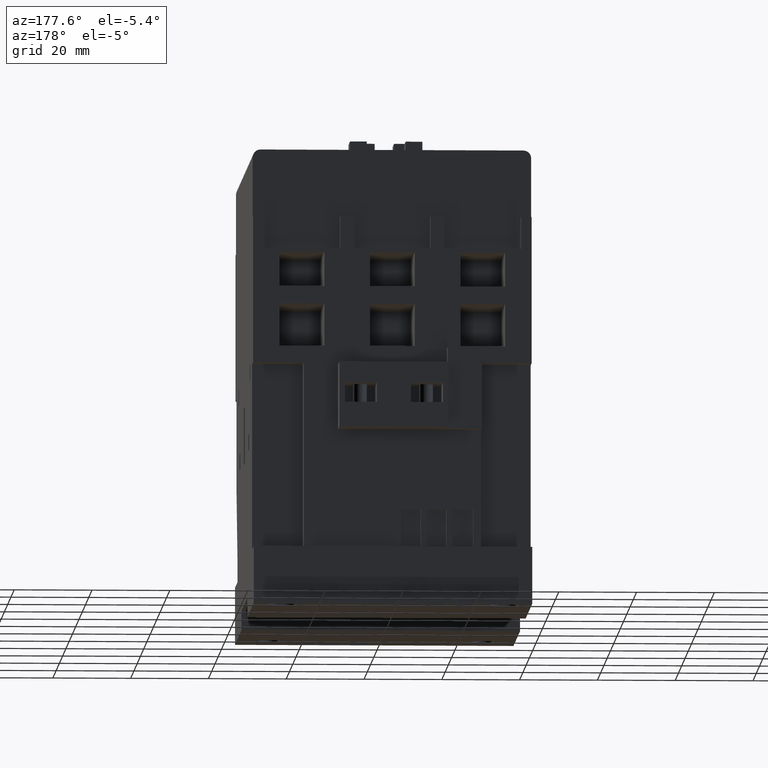
[diagram: clean part render]
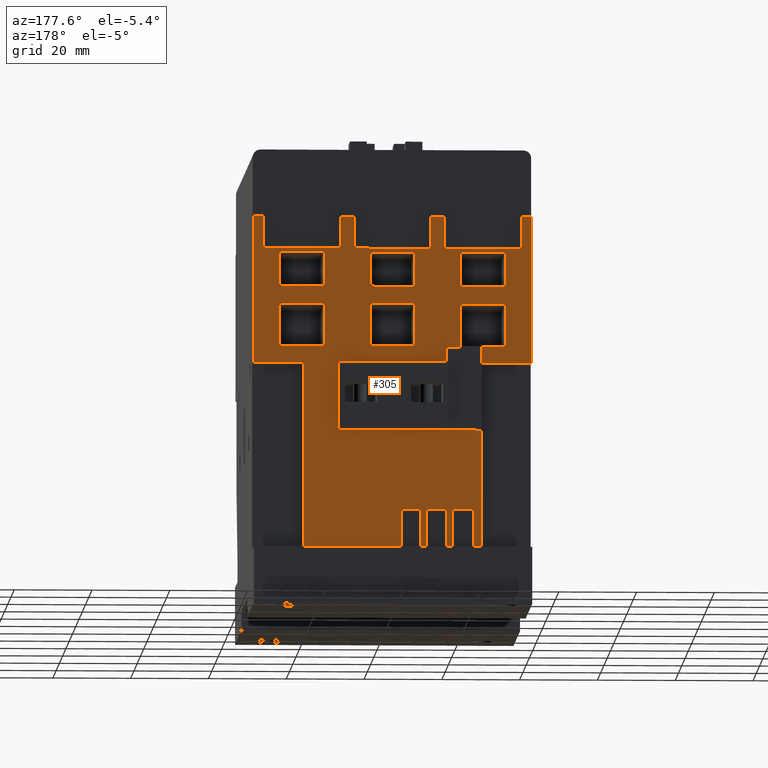
[diagram: same view with one face highlighted and labeled with its STEP entity id]
A machine part, auxiliary view. The second image highlights one B-rep face of the part: STEP entity #305.
In plain terms, the highlighted planar face has unit normal (-0, 1, -0).
Its self-contained STEP definition (entity closure, byte-faithful):
#226=FACE_BOUND('',#1390,.T.);
#227=FACE_BOUND('',#1391,.T.);
#228=FACE_BOUND('',#1392,.T.);
#229=FACE_BOUND('',#1393,.T.);
#230=FACE_BOUND('',#1394,.T.);
#231=FACE_BOUND('',#1395,.T.);
#232=FACE_BOUND('',#1396,.T.);
#305=ADVANCED_FACE('',(#226,#227,#228,#229,#230,#231,#232),#672,.T.);
#672=PLANE('',#7162);
#1390=EDGE_LOOP('',(#2113,#2114,#2115,#2116,#2117,#2118,#2119,#2120,#2121,
#2122,#2123,#2124,#2125,#2126,#2127,#2128,#2129,#2130,#2131,#2132,#2133,
#2134,#2135,#2136,#2137,#2138,#2139,#2140,#2141,#2142,#2143,#2144,#2145,
#2146,#2147,#2148,#2149,#2150));
#1391=EDGE_LOOP('',(#2151,#2152,#2153,#2154));
#1392=EDGE_LOOP('',(#2155,#2156,#2157,#2158));
#1393=EDGE_LOOP('',(#2159,#2160,#2161,#2162));
#1394=EDGE_LOOP('',(#2163,#2164,#2165,#2166));
#1395=EDGE_LOOP('',(#2167,#2168,#2169,#2170));
#1396=EDGE_LOOP('',(#2171,#2172,#2173,#2174));
#2113=ORIENTED_EDGE('',*,*,#4663,.F.);
#2114=ORIENTED_EDGE('',*,*,#4664,.F.);
#2115=ORIENTED_EDGE('',*,*,#4665,.F.);
#2116=ORIENTED_EDGE('',*,*,#4666,.F.);
#2117=ORIENTED_EDGE('',*,*,#4667,.F.);
#2118=ORIENTED_EDGE('',*,*,#4668,.F.);
#2119=ORIENTED_EDGE('',*,*,#4669,.F.);
#2120=ORIENTED_EDGE('',*,*,#4670,.F.);
#2121=ORIENTED_EDGE('',*,*,#4443,.T.);
#2122=ORIENTED_EDGE('',*,*,#4671,.F.);
#2123=ORIENTED_EDGE('',*,*,#4672,.F.);
#2124=ORIENTED_EDGE('',*,*,#4673,.F.);
#2125=ORIENTED_EDGE('',*,*,#4674,.F.);
#2126=ORIENTED_EDGE('',*,*,#4675,.F.);
#2127=ORIENTED_EDGE('',*,*,#4676,.F.);
#2128=ORIENTED_EDGE('',*,*,#4677,.F.);
#2129=ORIENTED_EDGE('',*,*,#4678,.F.);
#2130=ORIENTED_EDGE('',*,*,#4679,.F.);
#2131=ORIENTED_EDGE('',*,*,#4680,.F.);
#2132=ORIENTED_EDGE('',*,*,#4681,.F.);
#2133=ORIENTED_EDGE('',*,*,#4682,.F.);
#2134=ORIENTED_EDGE('',*,*,#4683,.F.);
#2135=ORIENTED_EDGE('',*,*,#4489,.F.);
#2136=ORIENTED_EDGE('',*,*,#4684,.T.);
#2137=ORIENTED_EDGE('',*,*,#4685,.T.);
#2138=ORIENTED_EDGE('',*,*,#4525,.T.);
#2139=ORIENTED_EDGE('',*,*,#4686,.F.);
#2140=ORIENTED_EDGE('',*,*,#4687,.F.);
#2141=ORIENTED_EDGE('',*,*,#4688,.T.);
#2142=ORIENTED_EDGE('',*,*,#4521,.T.);
#2143=ORIENTED_EDGE('',*,*,#4689,.F.);
#2144=ORIENTED_EDGE('',*,*,#4690,.F.);
#2145=ORIENTED_EDGE('',*,*,#4691,.T.);
#2146=ORIENTED_EDGE('',*,*,#4517,.T.);
#2147=ORIENTED_EDGE('',*,*,#4692,.F.);
#2148=ORIENTED_EDGE('',*,*,#4693,.F.);
#2149=ORIENTED_EDGE('',*,*,#4694,.T.);
#2150=ORIENTED_EDGE('',*,*,#4531,.T.);
#2151=ORIENTED_EDGE('',*,*,#4695,.T.);
#2152=ORIENTED_EDGE('',*,*,#4696,.T.);
#2153=ORIENTED_EDGE('',*,*,#4697,.T.);
#2154=ORIENTED_EDGE('',*,*,#4698,.T.);
#2155=ORIENTED_EDGE('',*,*,#4699,.F.);
#2156=ORIENTED_EDGE('',*,*,#4700,.F.);
#2157=ORIENTED_EDGE('',*,*,#4701,.F.);
#2158=ORIENTED_EDGE('',*,*,#4702,.F.);
#2159=ORIENTED_EDGE('',*,*,#4703,.F.);
#2160=ORIENTED_EDGE('',*,*,#4704,.F.);
#2161=ORIENTED_EDGE('',*,*,#4705,.F.);
#2162=ORIENTED_EDGE('',*,*,#4706,.F.);
#2163=ORIENTED_EDGE('',*,*,#4707,.F.);
#2164=ORIENTED_EDGE('',*,*,#4708,.F.);
#2165=ORIENTED_EDGE('',*,*,#4709,.F.);
#2166=ORIENTED_EDGE('',*,*,#4710,.F.);
#2167=ORIENTED_EDGE('',*,*,#4711,.F.);
#2168=ORIENTED_EDGE('',*,*,#4712,.F.);
#2169=ORIENTED_EDGE('',*,*,#4713,.F.);
#2170=ORIENTED_EDGE('',*,*,#4714,.F.);
#2171=ORIENTED_EDGE('',*,*,#4715,.F.);
#2172=ORIENTED_EDGE('',*,*,#4716,.F.);
#2173=ORIENTED_EDGE('',*,*,#4717,.F.);
#2174=ORIENTED_EDGE('',*,*,#4718,.F.);
#3783=VERTEX_POINT('',#9495);
#3784=VERTEX_POINT('',#9497);
#3829=VERTEX_POINT('',#9588);
#3830=VERTEX_POINT('',#9590);
#3857=VERTEX_POINT('',#9645);
#3858=VERTEX_POINT('',#9647);
#3861=VERTEX_POINT('',#9653);
#3862=VERTEX_POINT('',#9655);
#3865=VERTEX_POINT('',#9661);
#3866=VERTEX_POINT('',#9663);
#3869=VERTEX_POINT('',#9671);
#3870=VERTEX_POINT('',#9673);
#3989=VERTEX_POINT('',#9929);
#3990=VERTEX_POINT('',#9931);
#3991=VERTEX_POINT('',#9933);
#3992=VERTEX_POINT('',#9935);
#3993=VERTEX_POINT('',#9937);
#3994=VERTEX_POINT('',#9939);
#3995=VERTEX_POINT('',#9941);
#3996=VERTEX_POINT('',#9944);
#3997=VERTEX_POINT('',#9946);
#3998=VERTEX_POINT('',#9948);
#3999=VERTEX_POINT('',#9950);
#4000=VERTEX_POINT('',#9952);
#4001=VERTEX_POINT('',#9954);
#4002=VERTEX_POINT('',#9956);
#4003=VERTEX_POINT('',#9958);
#4004=VERTEX_POINT('',#9960);
#4005=VERTEX_POINT('',#9962);
#4006=VERTEX_POINT('',#9964);
#4007=VERTEX_POINT('',#9966);
#4008=VERTEX_POINT('',#9969);
#4009=VERTEX_POINT('',#9972);
#4010=VERTEX_POINT('',#9974);
#4011=VERTEX_POINT('',#9977);
#4012=VERTEX_POINT('',#9979);
#4013=VERTEX_POINT('',#9982);
#4014=VERTEX_POINT('',#9984);
#4015=VERTEX_POINT('',#9987);
#4016=VERTEX_POINT('',#9988);
#4017=VERTEX_POINT('',#9990);
#4018=VERTEX_POINT('',#9992);
#4019=VERTEX_POINT('',#9995);
#4020=VERTEX_POINT('',#9996);
#4021=VERTEX_POINT('',#9998);
#4022=VERTEX_POINT('',#10000);
#4023=VERTEX_POINT('',#10003);
#4024=VERTEX_POINT('',#10004);
#4025=VERTEX_POINT('',#10006);
#4026=VERTEX_POINT('',#10008);
#4027=VERTEX_POINT('',#10011);
#4028=VERTEX_POINT('',#10012);
#4029=VERTEX_POINT('',#10014);
#4030=VERTEX_POINT('',#10016);
#4031=VERTEX_POINT('',#10019);
#4032=VERTEX_POINT('',#10020);
#4033=VERTEX_POINT('',#10022);
#4034=VERTEX_POINT('',#10024);
#4035=VERTEX_POINT('',#10027);
#4036=VERTEX_POINT('',#10028);
#4037=VERTEX_POINT('',#10030);
#4038=VERTEX_POINT('',#10032);
#4443=EDGE_CURVE('',#3784,#3783,#5400,.T.);
#4489=EDGE_CURVE('',#3829,#3830,#5446,.T.);
#4517=EDGE_CURVE('',#3858,#3857,#5472,.T.);
#4521=EDGE_CURVE('',#3862,#3861,#5476,.T.);
#4525=EDGE_CURVE('',#3866,#3865,#5480,.T.);
#4531=EDGE_CURVE('',#3870,#3869,#5486,.T.);
#4663=EDGE_CURVE('',#3989,#3869,#5604,.T.);
#4664=EDGE_CURVE('',#3990,#3989,#5605,.T.);
#4665=EDGE_CURVE('',#3991,#3990,#5606,.T.);
#4666=EDGE_CURVE('',#3992,#3991,#5607,.T.);
#4667=EDGE_CURVE('',#3993,#3992,#5608,.T.);
#4668=EDGE_CURVE('',#3994,#3993,#5609,.T.);
#4669=EDGE_CURVE('',#3995,#3994,#5610,.T.);
#4670=EDGE_CURVE('',#3784,#3995,#5611,.T.);
#4671=EDGE_CURVE('',#3996,#3783,#5612,.T.);
#4672=EDGE_CURVE('',#3997,#3996,#5613,.T.);
#4673=EDGE_CURVE('',#3998,#3997,#5614,.T.);
#4674=EDGE_CURVE('',#3999,#3998,#5615,.T.);
#4675=EDGE_CURVE('',#4000,#3999,#5616,.T.);
#4676=EDGE_CURVE('',#4001,#4000,#5617,.T.);
#4677=EDGE_CURVE('',#4002,#4001,#5618,.T.);
#4678=EDGE_CURVE('',#4003,#4002,#5619,.T.);
#4679=EDGE_CURVE('',#4004,#4003,#5620,.T.);
#4680=EDGE_CURVE('',#4005,#4004,#5621,.T.);
#4681=EDGE_CURVE('',#4006,#4005,#5622,.T.);
#4682=EDGE_CURVE('',#4007,#4006,#5623,.T.);
#4683=EDGE_CURVE('',#3830,#4007,#5624,.T.);
#4684=EDGE_CURVE('',#3829,#4008,#5625,.T.);
#4685=EDGE_CURVE('',#4008,#3866,#5626,.T.);
#4686=EDGE_CURVE('',#4009,#3865,#5627,.T.);
#4687=EDGE_CURVE('',#4010,#4009,#5628,.T.);
#4688=EDGE_CURVE('',#4010,#3862,#5629,.T.);
#4689=EDGE_CURVE('',#4011,#3861,#5630,.T.);
#4690=EDGE_CURVE('',#4012,#4011,#5631,.T.);
#4691=EDGE_CURVE('',#4012,#3858,#5632,.T.);
#4692=EDGE_CURVE('',#4013,#3857,#5633,.T.);
#4693=EDGE_CURVE('',#4014,#4013,#5634,.T.);
#4694=EDGE_CURVE('',#4014,#3870,#5635,.T.);
#4695=EDGE_CURVE('',#4015,#4016,#5636,.T.);
#4696=EDGE_CURVE('',#4016,#4017,#5637,.T.);
#4697=EDGE_CURVE('',#4017,#4018,#5638,.T.);
#4698=EDGE_CURVE('',#4018,#4015,#5639,.T.);
#4699=EDGE_CURVE('',#4019,#4020,#5640,.T.);
#4700=EDGE_CURVE('',#4021,#4019,#5641,.T.);
#4701=EDGE_CURVE('',#4022,#4021,#5642,.T.);
#4702=EDGE_CURVE('',#4020,#4022,#5643,.T.);
#4703=EDGE_CURVE('',#4023,#4024,#5644,.T.);
#4704=EDGE_CURVE('',#4025,#4023,#5645,.T.);
#4705=EDGE_CURVE('',#4026,#4025,#5646,.T.);
#4706=EDGE_CURVE('',#4024,#4026,#5647,.T.);
#4707=EDGE_CURVE('',#4027,#4028,#5648,.T.);
#4708=EDGE_CURVE('',#4029,#4027,#5649,.T.);
#4709=EDGE_CURVE('',#4030,#4029,#5650,.T.);
#4710=EDGE_CURVE('',#4028,#4030,#5651,.T.);
#4711=EDGE_CURVE('',#4031,#4032,#5652,.T.);
#4712=EDGE_CURVE('',#4033,#4031,#5653,.T.);
#4713=EDGE_CURVE('',#4034,#4033,#5654,.T.);
#4714=EDGE_CURVE('',#4032,#4034,#5655,.T.);
#4715=EDGE_CURVE('',#4035,#4036,#5656,.T.);
#4716=EDGE_CURVE('',#4037,#4035,#5657,.T.);
#4717=EDGE_CURVE('',#4038,#4037,#5658,.T.);
#4718=EDGE_CURVE('',#4036,#4038,#5659,.T.);
#5400=LINE('',#9496,#6305);
#5446=LINE('',#9589,#6351);
#5472=LINE('',#9646,#6377);
#5476=LINE('',#9654,#6381);
#5480=LINE('',#9662,#6385);
#5486=LINE('',#9672,#6391);
#5604=LINE('',#9928,#6509);
#5605=LINE('',#9930,#6510);
#5606=LINE('',#9932,#6511);
#5607=LINE('',#9934,#6512);
#5608=LINE('',#9936,#6513);
#5609=LINE('',#9938,#6514);
#5610=LINE('',#9940,#6515);
#5611=LINE('',#9942,#6516);
#5612=LINE('',#9943,#6517);
#5613=LINE('',#9945,#6518);
#5614=LINE('',#9947,#6519);
#5615=LINE('',#9949,#6520);
#5616=LINE('',#9951,#6521);
#5617=LINE('',#9953,#6522);
#5618=LINE('',#9955,#6523);
#5619=LINE('',#9957,#6524);
#5620=LINE('',#9959,#6525);
#5621=LINE('',#9961,#6526);
#5622=LINE('',#9963,#6527);
#5623=LINE('',#9965,#6528);
#5624=LINE('',#9967,#6529);
#5625=LINE('',#9968,#6530);
#5626=LINE('',#9970,#6531);
#5627=LINE('',#9971,#6532);
#5628=LINE('',#9973,#6533);
#5629=LINE('',#9975,#6534);
#5630=LINE('',#9976,#6535);
#5631=LINE('',#9978,#6536);
#5632=LINE('',#9980,#6537);
#5633=LINE('',#9981,#6538);
#5634=LINE('',#9983,#6539);
#5635=LINE('',#9985,#6540);
#5636=LINE('',#9986,#6541);
#5637=LINE('',#9989,#6542);
#5638=LINE('',#9991,#6543);
#5639=LINE('',#9993,#6544);
#5640=LINE('',#9994,#6545);
#5641=LINE('',#9997,#6546);
#5642=LINE('',#9999,#6547);
#5643=LINE('',#10001,#6548);
#5644=LINE('',#10002,#6549);
#5645=LINE('',#10005,#6550);
#5646=LINE('',#10007,#6551);
#5647=LINE('',#10009,#6552);
#5648=LINE('',#10010,#6553);
#5649=LINE('',#10013,#6554);
#5650=LINE('',#10015,#6555);
#5651=LINE('',#10017,#6556);
#5652=LINE('',#10018,#6557);
#5653=LINE('',#10021,#6558);
#5654=LINE('',#10023,#6559);
#5655=LINE('',#10025,#6560);
#5656=LINE('',#10026,#6561);
#5657=LINE('',#10029,#6562);
#5658=LINE('',#10031,#6563);
#5659=LINE('',#10033,#6564);
#6305=VECTOR('',#7672,1.);
#6351=VECTOR('',#7720,1.);
#6377=VECTOR('',#7752,1.);
#6381=VECTOR('',#7756,1.);
#6385=VECTOR('',#7760,1.);
#6391=VECTOR('',#7766,1.);
#6509=VECTOR('',#7922,1.);
#6510=VECTOR('',#7923,1.);
#6511=VECTOR('',#7924,1.);
#6512=VECTOR('',#7925,1.);
#6513=VECTOR('',#7926,1.);
#6514=VECTOR('',#7927,1.);
#6515=VECTOR('',#7928,1.);
#6516=VECTOR('',#7929,1.);
#6517=VECTOR('',#7930,1.);
#6518=VECTOR('',#7931,1.);
#6519=VECTOR('',#7932,1.);
#6520=VECTOR('',#7933,1.);
#6521=VECTOR('',#7934,1.);
#6522=VECTOR('',#7935,1.);
#6523=VECTOR('',#7936,1.);
#6524=VECTOR('',#7937,1.);
#6525=VECTOR('',#7938,1.);
#6526=VECTOR('',#7939,1.);
#6527=VECTOR('',#7940,1.);
#6528=VECTOR('',#7941,1.);
#6529=VECTOR('',#7942,1.);
#6530=VECTOR('',#7943,1.);
#6531=VECTOR('',#7944,1.);
#6532=VECTOR('',#7945,1.);
#6533=VECTOR('',#7946,1.);
#6534=VECTOR('',#7947,1.);
#6535=VECTOR('',#7948,1.);
#6536=VECTOR('',#7949,1.);
#6537=VECTOR('',#7950,1.);
#6538=VECTOR('',#7951,1.);
#6539=VECTOR('',#7952,1.);
#6540=VECTOR('',#7953,1.);
#6541=VECTOR('',#7954,1.);
#6542=VECTOR('',#7955,1.);
#6543=VECTOR('',#7956,1.);
#6544=VECTOR('',#7957,1.);
#6545=VECTOR('',#7958,1.);
#6546=VECTOR('',#7959,1.);
#6547=VECTOR('',#7960,1.);
#6548=VECTOR('',#7961,1.);
#6549=VECTOR('',#7962,1.);
#6550=VECTOR('',#7963,1.);
#6551=VECTOR('',#7964,1.);
#6552=VECTOR('',#7965,1.);
#6553=VECTOR('',#7966,1.);
#6554=VECTOR('',#7967,1.);
#6555=VECTOR('',#7968,1.);
#6556=VECTOR('',#7969,1.);
#6557=VECTOR('',#7970,1.);
#6558=VECTOR('',#7971,1.);
#6559=VECTOR('',#7972,1.);
#6560=VECTOR('',#7973,1.);
#6561=VECTOR('',#7974,1.);
#6562=VECTOR('',#7975,1.);
#6563=VECTOR('',#7976,1.);
#6564=VECTOR('',#7977,1.);
#7162=AXIS2_PLACEMENT_3D('',#10034,#7978,#7979);
#7672=DIRECTION('',(-1.50008589724755E-030,4.8020027016659E-016,1.));
#7720=DIRECTION('',(-1.50008589724755E-030,4.8020027016659E-016,1.));
#7752=DIRECTION('',(-1.,-4.6858133692651E-015,7.50042948623774E-031));
#7756=DIRECTION('',(-1.,-4.6858133692651E-015,7.50042948623774E-031));
#7760=DIRECTION('',(-1.,-4.6858133692651E-015,7.50042948623774E-031));
#7766=DIRECTION('',(-1.,-4.6858133692651E-015,7.50042948623774E-031));
#7922=DIRECTION('',(-2.18204210814693E-016,0.,-1.));
#7923=DIRECTION('',(-1.,0.,2.47817639425258E-016));
#7924=DIRECTION('',(0.,0.,-1.));
#7925=DIRECTION('',(1.,0.,0.));
#7926=DIRECTION('',(0.,0.,-1.));
#7927=DIRECTION('',(1.,0.,0.));
#7928=DIRECTION('',(0.,0.,1.));
#7929=DIRECTION('',(1.,0.,-5.33761069531325E-016));
#7930=DIRECTION('',(-1.,-4.6858133692651E-015,7.50042948623774E-031));
#7931=DIRECTION('',(-7.50042948623774E-031,3.20133513444393E-016,1.));
#7932=DIRECTION('',(-1.,-4.6858133692651E-015,7.04456233899212E-016));
#7933=DIRECTION('',(7.50042948623774E-031,-3.20133513444393E-016,-1.));
#7934=DIRECTION('',(-1.,-4.6858133692651E-015,7.50042948623774E-031));
#7935=DIRECTION('',(-7.50042948623774E-031,3.20133513444393E-016,1.));
#7936=DIRECTION('',(-1.,-4.6858133692651E-015,7.08050398357881E-016));
#7937=DIRECTION('',(7.50042948623774E-031,-3.20133513444393E-016,-1.));
#7938=DIRECTION('',(-1.,-4.6858133692651E-015,7.50042948623774E-031));
#7939=DIRECTION('',(-7.50042948623774E-031,3.20133513444393E-016,1.));
#7940=DIRECTION('',(-1.,-4.6858133692651E-015,7.50042948623774E-031));
#7941=DIRECTION('',(7.50042948623774E-031,-3.20133513444393E-016,-1.));
#7942=DIRECTION('',(-1.,-4.6858133692651E-015,7.50042948623774E-031));
#7943=DIRECTION('',(-1.,0.,0.));
#7944=DIRECTION('',(1.891103160394E-015,0.,-1.));
#7945=DIRECTION('',(1.17145334231628E-015,0.,-1.));
#7946=DIRECTION('',(1.,4.06110437274572E-015,0.));
#7947=DIRECTION('',(1.17145334231628E-015,0.,-1.));
#7948=DIRECTION('',(1.17145334231628E-015,0.,-1.));
#7949=DIRECTION('',(1.,4.13234944690391E-015,0.));
#7950=DIRECTION('',(1.17145334231628E-015,0.,-1.));
#7951=DIRECTION('',(1.17145334231628E-015,0.,-1.));
#7952=DIRECTION('',(1.,5.13992141030164E-015,0.));
#7953=DIRECTION('',(1.17145334231628E-015,0.,-1.));
#7954=DIRECTION('',(-1.,-4.6858133692651E-015,7.50042948623774E-031));
#7955=DIRECTION('',(1.50008589724755E-030,-4.8020027016659E-016,-1.));
#7956=DIRECTION('',(1.,4.6858133692651E-015,-7.50042948623774E-031));
#7957=DIRECTION('',(-1.50008589724755E-030,4.8020027016659E-016,1.));
#7958=DIRECTION('',(-1.50008589724755E-030,4.8020027016659E-016,1.));
#7959=DIRECTION('',(-1.,-4.6858133692651E-015,7.50042948623774E-031));
#7960=DIRECTION('',(-1.59148942750164E-016,-4.80200270166591E-016,-1.));
#7961=DIRECTION('',(1.,4.6858133692651E-015,-7.50042948623774E-031));
#7962=DIRECTION('',(-1.50008589724755E-030,4.8020027016659E-016,1.));
#7963=DIRECTION('',(-1.,-4.6858133692651E-015,7.50042948623774E-031));
#7964=DIRECTION('',(1.50008589724755E-030,-4.8020027016659E-016,-1.));
#7965=DIRECTION('',(1.,4.6858133692651E-015,-7.50042948623774E-031));
#7966=DIRECTION('',(1.50008589724755E-030,-4.8020027016659E-016,-1.));
#7967=DIRECTION('',(1.,4.6858133692651E-015,-7.50042948623774E-031));
#7968=DIRECTION('',(-1.50008589724755E-030,4.8020027016659E-016,1.));
#7969=DIRECTION('',(-1.,-4.6858133692651E-015,7.50042948623774E-031));
#7970=DIRECTION('',(1.50008589724755E-030,-4.8020027016659E-016,-1.));
#7971=DIRECTION('',(1.,4.6858133692651E-015,-7.50042948623774E-031));
#7972=DIRECTION('',(3.94255335449273E-016,4.80200270166592E-016,1.));
#7973=DIRECTION('',(-1.,-4.6858133692651E-015,7.50042948623774E-031));
#7974=DIRECTION('',(-1.50008589724755E-030,4.8020027016659E-016,1.));
#7975=DIRECTION('',(-1.,-4.6858133692651E-015,1.20676415720126E-015));
#7976=DIRECTION('',(-6.36595771000661E-016,-4.80200270166593E-016,-1.));
#7977=DIRECTION('',(1.,4.6858133692651E-015,-7.50042948623774E-031));
#7978=DIRECTION('',(-4.6858133692651E-015,1.,-4.8020027016659E-016));
#7979=DIRECTION('',(0.,-4.78783679369599E-016,-1.));
#9495=CARTESIAN_POINT('',(-35.8000000000003,53.9999999999999,95.1500000000094));
#9496=CARTESIAN_POINT('',(-35.8000000000002,53.9999999999998,9.70000000000934));
#9497=CARTESIAN_POINT('',(-35.8000000000002,53.9999999999999,57.4000000000094));
#9588=CARTESIAN_POINT('',(35.7999999999997,54.0000000000002,57.4000000000094));
#9589=CARTESIAN_POINT('',(35.7999999999997,54.0000000000002,9.70000000000934));
#9590=CARTESIAN_POINT('',(35.7999999999997,54.0000000000002,95.1500000000093));
#9645=CARTESIAN_POINT('',(-15.4,53.9999999999999,9.70000000000936));
#9646=CARTESIAN_POINT('',(35.7999999999997,54.0000000000002,9.70000000000934));
#9647=CARTESIAN_POINT('',(-13.9,53.9999999999999,9.70000000000936));
#9653=CARTESIAN_POINT('',(-8.86250692754984,54.,9.70000000000936));
#9654=CARTESIAN_POINT('',(35.7999999999997,54.0000000000002,9.70000000000934));
#9655=CARTESIAN_POINT('',(-7.36250692754985,54.,9.70000000000936));
#9661=CARTESIAN_POINT('',(-2.23663972467186,54.,9.70000000000936));
#9662=CARTESIAN_POINT('',(35.7999999999997,54.0000000000002,9.70000000000934));
#9663=CARTESIAN_POINT('',(22.8000000000001,54.,9.70000000000937));
#9671=CARTESIAN_POINT('',(-22.8,53.9999999999999,9.70000000000934));
#9672=CARTESIAN_POINT('',(35.7999999999997,54.0000000000002,9.70000000000934));
#9673=CARTESIAN_POINT('',(-20.8,53.9999999999999,9.70000000000936));
#9928=CARTESIAN_POINT('',(-22.8,54.,57.4000000000094));
#9929=CARTESIAN_POINT('',(-22.8,54.,40.1000000000094));
#9930=CARTESIAN_POINT('',(14.,54.,40.1000000000094));
#9931=CARTESIAN_POINT('',(14.,54.,40.1000000000094));
#9932=CARTESIAN_POINT('',(14.,54.,56.8000000000094));
#9933=CARTESIAN_POINT('',(14.,54.,56.8000000000094));
#9934=CARTESIAN_POINT('',(-14.,54.,56.8000000000094));
#9935=CARTESIAN_POINT('',(-14.,54.,56.8000000000094));
#9936=CARTESIAN_POINT('',(-14.,54.,56.8000000000094));
#9937=CARTESIAN_POINT('',(-14.,54.,61.1000000000094));
#9938=CARTESIAN_POINT('',(-22.8,54.,61.1000000000094));
#9939=CARTESIAN_POINT('',(-22.8,54.,61.1000000000094));
#9940=CARTESIAN_POINT('',(-22.8,54.,57.4000000000094));
#9941=CARTESIAN_POINT('',(-22.8,54.,57.4000000000094));
#9942=CARTESIAN_POINT('',(-35.8,54.,57.4000000000094));
#9943=CARTESIAN_POINT('',(-33.1000000000003,53.9999999999999,95.1500000000094));
#9944=CARTESIAN_POINT('',(-33.1000000000003,53.9999999999999,95.1500000000094));
#9945=CARTESIAN_POINT('',(-33.1000000000003,53.9999999999999,86.9500000000094));
#9946=CARTESIAN_POINT('',(-33.1000000000003,53.9999999999999,86.9500000000094));
#9947=CARTESIAN_POINT('',(-13.4000000000003,54.,86.9500000000093));
#9948=CARTESIAN_POINT('',(-13.4000000000003,54.,86.9500000000093));
#9949=CARTESIAN_POINT('',(-13.4000000000003,54.,95.1500000000094));
#9950=CARTESIAN_POINT('',(-13.4000000000003,54.,95.1500000000094));
#9951=CARTESIAN_POINT('',(-9.80000000000025,54.,95.1500000000094));
#9952=CARTESIAN_POINT('',(-9.80000000000025,54.,95.1500000000094));
#9953=CARTESIAN_POINT('',(-9.80000000000025,54.,86.9500000000093));
#9954=CARTESIAN_POINT('',(-9.80000000000025,54.,86.9500000000093));
#9955=CARTESIAN_POINT('',(9.79999999999975,54.0000000000001,86.9500000000093));
#9956=CARTESIAN_POINT('',(9.79999999999975,54.0000000000001,86.9500000000093));
#9957=CARTESIAN_POINT('',(9.79999999999975,54.0000000000001,95.1500000000093));
#9958=CARTESIAN_POINT('',(9.79999999999975,54.0000000000001,95.1500000000093));
#9959=CARTESIAN_POINT('',(13.3999999999998,54.0000000000001,95.1500000000093));
#9960=CARTESIAN_POINT('',(13.3999999999998,54.0000000000001,95.1500000000093));
#9961=CARTESIAN_POINT('',(13.3999999999998,54.0000000000001,86.9500000000093));
#9962=CARTESIAN_POINT('',(13.3999999999998,54.0000000000001,86.9500000000093));
#9963=CARTESIAN_POINT('',(33.0999999999997,54.0000000000002,86.9500000000093));
#9964=CARTESIAN_POINT('',(33.0999999999997,54.0000000000002,86.9500000000093));
#9965=CARTESIAN_POINT('',(33.0999999999997,54.0000000000002,95.1500000000093));
#9966=CARTESIAN_POINT('',(33.0999999999997,54.0000000000002,95.1500000000093));
#9967=CARTESIAN_POINT('',(35.7999999999997,54.0000000000002,95.1500000000093));
#9968=CARTESIAN_POINT('',(35.8,54.,57.4000000000094));
#9969=CARTESIAN_POINT('',(22.8,54.,57.4000000000094));
#9970=CARTESIAN_POINT('',(22.8,54.,57.4000000000094));
#9971=CARTESIAN_POINT('',(-2.23663972467187,54.,19.7000000000094));
#9972=CARTESIAN_POINT('',(-2.23663972467187,54.,19.7000000000094));
#9973=CARTESIAN_POINT('',(-7.36250692754986,54.,19.7000000000093));
#9974=CARTESIAN_POINT('',(-7.36250692754987,54.,19.7000000000094));
#9975=CARTESIAN_POINT('',(-7.36250692754987,54.,19.7000000000094));
#9976=CARTESIAN_POINT('',(-8.86250692754985,54.,19.7000000000094));
#9977=CARTESIAN_POINT('',(-8.86250692754985,54.,19.7000000000094));
#9978=CARTESIAN_POINT('',(-13.9,53.9999999999999,19.7000000000093));
#9979=CARTESIAN_POINT('',(-13.9,53.9999999999999,19.7000000000094));
#9980=CARTESIAN_POINT('',(-13.9,53.9999999999999,19.7000000000094));
#9981=CARTESIAN_POINT('',(-15.4,53.9999999999999,19.7000000000094));
#9982=CARTESIAN_POINT('',(-15.4,53.9999999999999,19.7000000000094));
#9983=CARTESIAN_POINT('',(-20.8,53.9999999999999,19.7000000000093));
#9984=CARTESIAN_POINT('',(-20.8,53.9999999999999,19.7000000000094));
#9985=CARTESIAN_POINT('',(-20.8,53.9999999999999,19.7000000000094));
#9986=CARTESIAN_POINT('',(35.7999999999997,54.0000000000002,85.95));
#9987=CARTESIAN_POINT('',(-17.5000000000003,54.,85.95));
#9988=CARTESIAN_POINT('',(-29.0000000000003,53.9999999999999,85.95));
#9989=CARTESIAN_POINT('',(-29.0000000000002,53.9999999999999,9.70000000000934));
#9990=CARTESIAN_POINT('',(-29.0000000000003,53.9999999999999,77.15));
#9991=CARTESIAN_POINT('',(35.7999999999997,54.0000000000002,77.1499999999999));
#9992=CARTESIAN_POINT('',(-17.5000000000003,54.,77.15));
#9993=CARTESIAN_POINT('',(-17.5000000000003,53.9999999999999,9.70000000000934));
#9994=CARTESIAN_POINT('',(-5.75000000000025,54.,9.70000000000934));
#9995=CARTESIAN_POINT('',(-5.75000000000026,54.,61.75));
#9996=CARTESIAN_POINT('',(-5.75000000000025,54.,72.65));
#9997=CARTESIAN_POINT('',(35.7999999999997,54.0000000000002,61.75));
#9998=CARTESIAN_POINT('',(5.74999999999975,54.0000000000001,61.75));
#9999=CARTESIAN_POINT('',(5.74999999999973,54.,9.70000000000935));
#10000=CARTESIAN_POINT('',(5.74999999999975,54.0000000000001,72.65));
#10001=CARTESIAN_POINT('',(35.7999999999997,54.0000000000002,72.65));
#10002=CARTESIAN_POINT('',(17.4999999999998,54.0000000000001,9.70000000000934));
#10003=CARTESIAN_POINT('',(17.4999999999998,54.0000000000001,61.75));
#10004=CARTESIAN_POINT('',(17.4999999999998,54.0000000000001,72.65));
#10005=CARTESIAN_POINT('',(35.7999999999997,54.0000000000002,61.75));
#10006=CARTESIAN_POINT('',(28.9999999999998,54.0000000000002,61.75));
#10007=CARTESIAN_POINT('',(28.9999999999998,54.0000000000001,9.70000000000934));
#10008=CARTESIAN_POINT('',(28.9999999999998,54.0000000000002,72.65));
#10009=CARTESIAN_POINT('',(35.7999999999997,54.0000000000002,72.6499999999999));
#10010=CARTESIAN_POINT('',(28.9999999999998,54.0000000000001,9.70000000000934));
#10011=CARTESIAN_POINT('',(28.9999999999998,54.0000000000002,85.95));
#10012=CARTESIAN_POINT('',(28.9999999999998,54.0000000000002,77.15));
#10013=CARTESIAN_POINT('',(35.7999999999997,54.0000000000002,85.95));
#10014=CARTESIAN_POINT('',(17.4999999999998,54.0000000000001,85.95));
#10015=CARTESIAN_POINT('',(17.4999999999998,54.0000000000001,9.70000000000934));
#10016=CARTESIAN_POINT('',(17.4999999999998,54.0000000000001,77.15));
#10017=CARTESIAN_POINT('',(35.7999999999997,54.0000000000002,77.1499999999999));
#10018=CARTESIAN_POINT('',(5.74999999999975,54.,9.70000000000934));
#10019=CARTESIAN_POINT('',(5.74999999999975,54.0000000000001,85.95));
#10020=CARTESIAN_POINT('',(5.74999999999975,54.0000000000001,77.15));
#10021=CARTESIAN_POINT('',(35.7999999999997,54.0000000000002,85.95));
#10022=CARTESIAN_POINT('',(-5.75000000000025,54.,85.95));
#10023=CARTESIAN_POINT('',(-5.75000000000028,54.,9.70000000000936));
#10024=CARTESIAN_POINT('',(-5.75000000000026,54.,77.15));
#10025=CARTESIAN_POINT('',(35.7999999999997,54.0000000000002,77.1499999999999));
#10026=CARTESIAN_POINT('',(-29.0000000000002,53.9999999999999,9.70000000000934));
#10027=CARTESIAN_POINT('',(-29.0000000000003,53.9999999999999,61.75));
#10028=CARTESIAN_POINT('',(-29.0000000000002,53.9999999999999,72.65));
#10029=CARTESIAN_POINT('',(35.7999999999998,54.0000000000002,61.7499999999999));
#10030=CARTESIAN_POINT('',(-17.5000000000003,53.9999999999999,61.75));
#10031=CARTESIAN_POINT('',(-17.5000000000003,53.9999999999999,9.70000000000938));
#10032=CARTESIAN_POINT('',(-17.5000000000003,53.9999999999999,72.65));
#10033=CARTESIAN_POINT('',(35.7999999999997,54.0000000000002,72.65));
#10034=CARTESIAN_POINT('',(35.7999999999997,54.0000000000002,9.70000000000934));